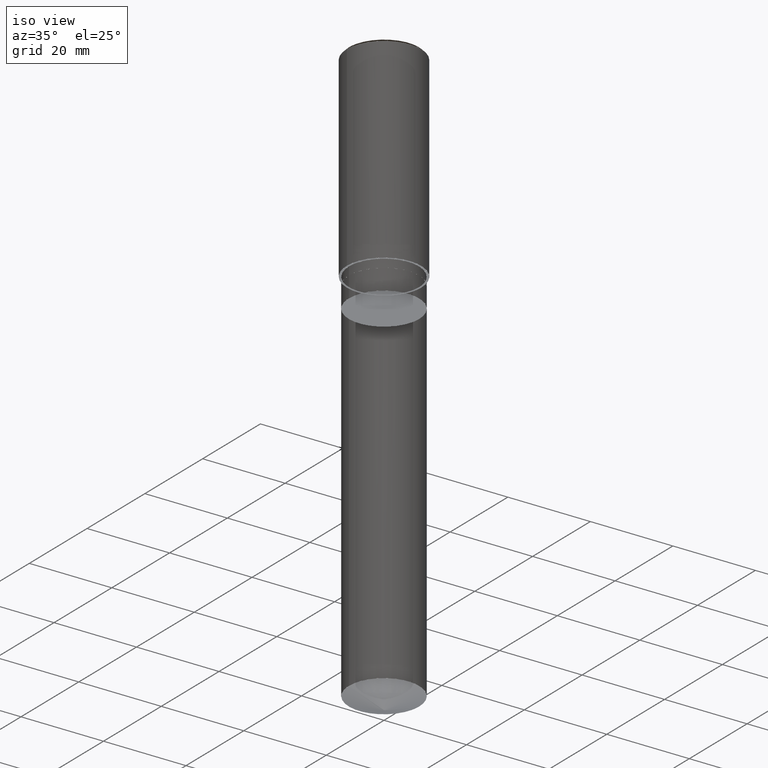
[diagram: clean part render]
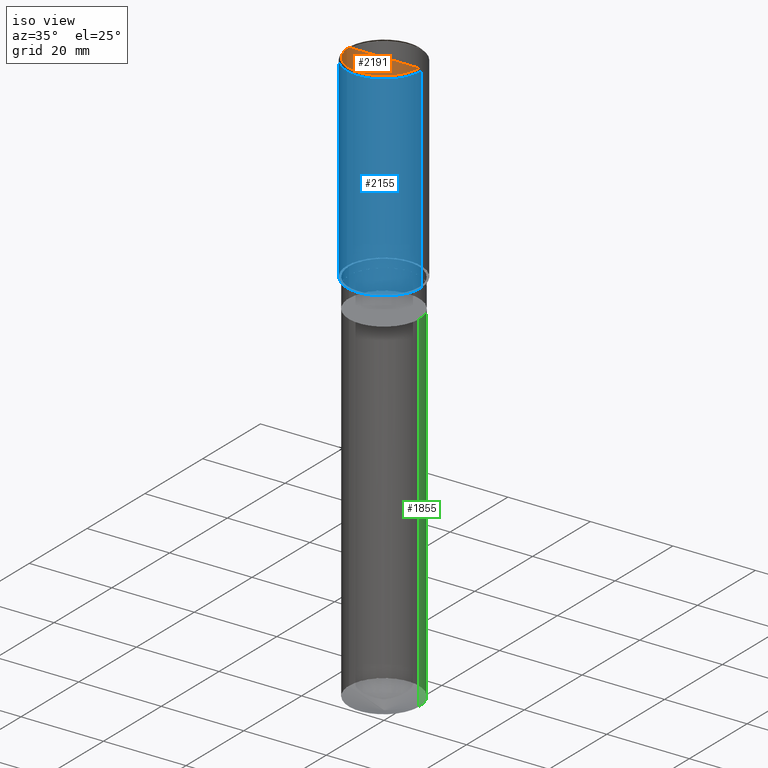
[diagram: same view with three faces highlighted in distinct colors, each labeled with its STEP entity id]
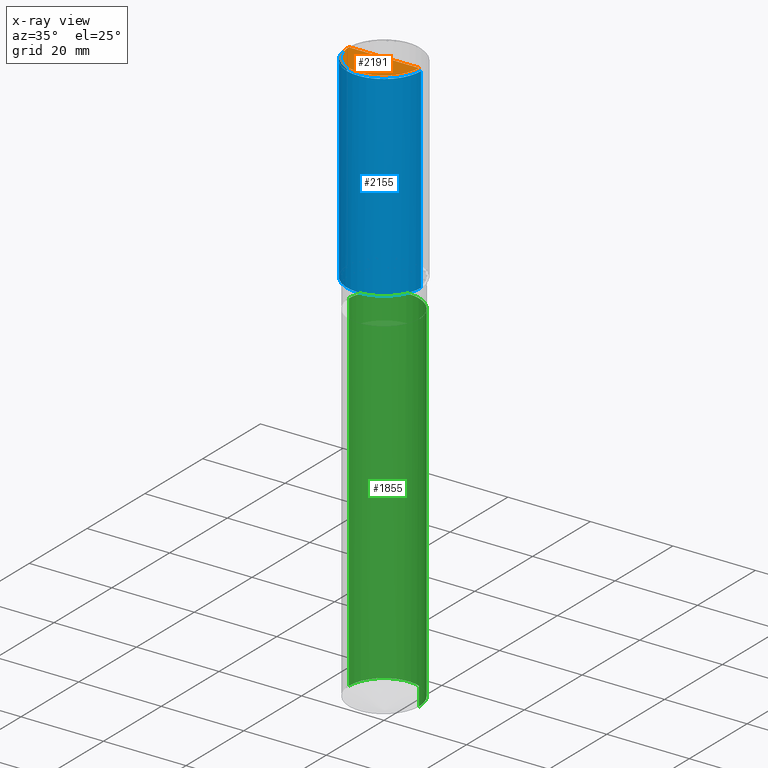
[diagram: x-ray of the same camera — body ghosted, the three highlighted faces saturated]
A machine part, iso view with three faces highlighted in distinct colors.
The next image is the same camera in x-ray (body ghosted, the three faces saturated) — at least one of them is partly hidden behind the body in this view.
Their STEP definitions:

[orange] entity #2191 — the highlighted face is a freeform B-spline surface patch.
#1794=CARTESIAN_POINT('',(8.5,0.0,48.0));
#1798=CARTESIAN_POINT('',(-8.5,0.0,48.0));
#1799=CARTESIAN_POINT('',(0.0,0.0,48.0));
#1812=CARTESIAN_POINT('',(-8.5,-8.5,48.0));
#1813=CARTESIAN_POINT('',(0.0,-8.5,48.0));
#1814=CARTESIAN_POINT('',(8.5,-8.5,48.0));
#2176=(
BOUNDED_SURFACE()
B_SPLINE_SURFACE(1,2,(
(#1798,#1812,#1813,#1814,#1794),
(#1799,#1799,#1799,#1799,#1799)
), .UNSPECIFIED.,.F.,.F.,.F.)
B_SPLINE_SURFACE_WITH_KNOTS((2,2),(3,2,3),(
0.0,1.0),(
0.0,0.5,1.0), .UNSPECIFIED.)
GEOMETRIC_REPRESENTATION_ITEM()
RATIONAL_B_SPLINE_SURFACE(((1.0,0.707106781187,1.0,0.707106781187,1.0),
(1.0,0.707106781187,1.0,0.707106781187,1.0)
))
REPRESENTATION_ITEM('')
SURFACE()
);
#2177=(
BOUNDED_CURVE()
B_SPLINE_CURVE(2,(#1794,#1814,#1813,#1812,#1798),.UNSPECIFIED.,.F.,.F.)
B_SPLINE_CURVE_WITH_KNOTS((3,2,3),
(0.0,0.5,1.0),.UNSPECIFIED.)
CURVE()
GEOMETRIC_REPRESENTATION_ITEM()
RATIONAL_B_SPLINE_CURVE((1.0,0.707106781187,1.0,0.707106781187,1.0))
REPRESENTATION_ITEM('')
);
#2178=(
BOUNDED_CURVE()
B_SPLINE_CURVE(1,(#1798,#1799),.UNSPECIFIED.,.F.,.F.)
B_SPLINE_CURVE_WITH_KNOTS((2,2),
(0.0,1.0),.UNSPECIFIED.)
CURVE()
GEOMETRIC_REPRESENTATION_ITEM()
RATIONAL_B_SPLINE_CURVE((1.0,1.0))
REPRESENTATION_ITEM('')
);
#2179=(
BOUNDED_CURVE()
B_SPLINE_CURVE(1,(#1799,#1794),.UNSPECIFIED.,.F.,.F.)
B_SPLINE_CURVE_WITH_KNOTS((2,2),
(0.0,1.0),.UNSPECIFIED.)
CURVE()
GEOMETRIC_REPRESENTATION_ITEM()
RATIONAL_B_SPLINE_CURVE((1.0,1.0))
REPRESENTATION_ITEM('')
);
#2180=VERTEX_POINT('',#1794);
#2181=VERTEX_POINT('',#1798);
#2182=VERTEX_POINT('',#1799);
#2183=EDGE_CURVE('',#2180,#2181,#2177,.T.);
#2184=EDGE_CURVE('',#2181,#2182,#2178,.T.);
#2185=EDGE_CURVE('',#2182,#2180,#2179,.T.);
#2186=ORIENTED_EDGE('',*,*,#2183,.T.);
#2187=ORIENTED_EDGE('',*,*,#2184,.T.);
#2188=ORIENTED_EDGE('',*,*,#2185,.T.);
#2189=EDGE_LOOP('',(#2186,#2187,#2188));
#2190=FACE_OUTER_BOUND('',#2189,.T.);
#2191=ADVANCED_FACE('',(#2190),#2176,.T.);

[blue] entity #2155 — the highlighted face is a freeform B-spline surface patch.
#1784=CARTESIAN_POINT('',(9.0,0.0,0.0));
#1788=CARTESIAN_POINT('',(-9.0,0.0,0.0));
#1789=CARTESIAN_POINT('',(9.0,0.0,47.5));
#1793=CARTESIAN_POINT('',(-9.0,0.0,47.5));
#1806=CARTESIAN_POINT('',(-9.0,-9.0,0.0));
#1807=CARTESIAN_POINT('',(0.0,-9.0,0.0));
#1808=CARTESIAN_POINT('',(9.0,-9.0,0.0));
#1809=CARTESIAN_POINT('',(-9.0,-9.0,47.5));
#1810=CARTESIAN_POINT('',(0.0,-9.0,47.5));
#1811=CARTESIAN_POINT('',(9.0,-9.0,47.5));
#2136=(
BOUNDED_SURFACE()
B_SPLINE_SURFACE(1,2,(
(#1788,#1806,#1807,#1808,#1784),
(#1793,#1809,#1810,#1811,#1789)
), .UNSPECIFIED.,.F.,.F.,.F.)
B_SPLINE_SURFACE_WITH_KNOTS((2,2),(3,2,3),(
0.0,1.0),(
0.0,0.5,1.0), .UNSPECIFIED.)
GEOMETRIC_REPRESENTATION_ITEM()
RATIONAL_B_SPLINE_SURFACE(((1.0,0.707106781187,1.0,0.707106781187,1.0),
(1.0,0.707106781187,1.0,0.707106781187,1.0)
))
REPRESENTATION_ITEM('')
SURFACE()
);
#2137=(
BOUNDED_CURVE()
B_SPLINE_CURVE(2,(#1784,#1808,#1807,#1806,#1788),.UNSPECIFIED.,.F.,.F.)
B_SPLINE_CURVE_WITH_KNOTS((3,2,3),
(0.0,0.5,1.0),.UNSPECIFIED.)
CURVE()
GEOMETRIC_REPRESENTATION_ITEM()
RATIONAL_B_SPLINE_CURVE((1.0,0.707106781187,1.0,0.707106781187,1.0))
REPRESENTATION_ITEM('')
);
#2138=(
BOUNDED_CURVE()
B_SPLINE_CURVE(1,(#1788,#1793),.UNSPECIFIED.,.F.,.F.)
B_SPLINE_CURVE_WITH_KNOTS((2,2),
(0.0,1.0),.UNSPECIFIED.)
CURVE()
GEOMETRIC_REPRESENTATION_ITEM()
RATIONAL_B_SPLINE_CURVE((1.0,1.0))
REPRESENTATION_ITEM('')
);
#2139=(
BOUNDED_CURVE()
B_SPLINE_CURVE(2,(#1793,#1809,#1810,#1811,#1789),.UNSPECIFIED.,.F.,.F.)
B_SPLINE_CURVE_WITH_KNOTS((3,2,3),
(0.0,0.5,1.0),.UNSPECIFIED.)
CURVE()
GEOMETRIC_REPRESENTATION_ITEM()
RATIONAL_B_SPLINE_CURVE((1.0,0.707106781187,1.0,0.707106781187,1.0))
REPRESENTATION_ITEM('')
);
#2140=(
BOUNDED_CURVE()
B_SPLINE_CURVE(1,(#1789,#1784),.UNSPECIFIED.,.F.,.F.)
B_SPLINE_CURVE_WITH_KNOTS((2,2),
(0.0,1.0),.UNSPECIFIED.)
CURVE()
GEOMETRIC_REPRESENTATION_ITEM()
RATIONAL_B_SPLINE_CURVE((1.0,1.0))
REPRESENTATION_ITEM('')
);
#2141=VERTEX_POINT('',#1784);
#2142=VERTEX_POINT('',#1788);
#2143=VERTEX_POINT('',#1789);
#2144=VERTEX_POINT('',#1793);
#2145=EDGE_CURVE('',#2141,#2142,#2137,.T.);
#2146=EDGE_CURVE('',#2142,#2144,#2138,.T.);
#2147=EDGE_CURVE('',#2144,#2143,#2139,.T.);
#2148=EDGE_CURVE('',#2143,#2141,#2140,.T.);
#2149=ORIENTED_EDGE('',*,*,#2145,.T.);
#2150=ORIENTED_EDGE('',*,*,#2146,.T.);
#2151=ORIENTED_EDGE('',*,*,#2147,.T.);
#2152=ORIENTED_EDGE('',*,*,#2148,.T.);
#2153=EDGE_LOOP('',(#2149,#2150,#2151,#2152));
#2154=FACE_OUTER_BOUND('',#2153,.T.);
#2155=ADVANCED_FACE('',(#2154),#2136,.T.);

[green] entity #1855 — the highlighted face is a freeform B-spline surface patch.
#1757=CARTESIAN_POINT('',(8.5,0.0,-91.906253008737));
#1758=CARTESIAN_POINT('',(8.5,8.5,-91.906253008737));
#1759=CARTESIAN_POINT('',(0.0,8.5,-91.906253008737));
#1760=CARTESIAN_POINT('',(-8.5,8.5,-91.906253008737));
#1761=CARTESIAN_POINT('',(-8.5,0.0,-91.906253008737));
#1762=CARTESIAN_POINT('',(8.5,0.0,-7.0));
#1763=CARTESIAN_POINT('',(8.5,8.5,-7.0));
#1764=CARTESIAN_POINT('',(0.0,8.5,-7.0));
#1765=CARTESIAN_POINT('',(-8.5,8.5,-7.0));
#1766=CARTESIAN_POINT('',(-8.5,0.0,-7.0));
#1836=(
BOUNDED_SURFACE()
B_SPLINE_SURFACE(1,2,(
(#1757,#1758,#1759,#1760,#1761),
(#1762,#1763,#1764,#1765,#1766)
), .UNSPECIFIED.,.F.,.F.,.F.)
B_SPLINE_SURFACE_WITH_KNOTS((2,2),(3,2,3),(
0.0,1.0),(
0.0,0.5,1.0), .UNSPECIFIED.)
GEOMETRIC_REPRESENTATION_ITEM()
RATIONAL_B_SPLINE_SURFACE(((1.0,0.707106781187,1.0,0.707106781187,1.0),
(1.0,0.707106781187,1.0,0.707106781187,1.0)
))
REPRESENTATION_ITEM('')
SURFACE()
);
#1837=(
BOUNDED_CURVE()
B_SPLINE_CURVE(2,(#1761,#1760,#1759,#1758,#1757),.UNSPECIFIED.,.F.,.F.)
B_SPLINE_CURVE_WITH_KNOTS((3,2,3),
(0.0,0.5,1.0),.UNSPECIFIED.)
CURVE()
GEOMETRIC_REPRESENTATION_ITEM()
RATIONAL_B_SPLINE_CURVE((1.0,0.707106781187,1.0,0.707106781187,1.0))
REPRESENTATION_ITEM('')
);
#1838=(
BOUNDED_CURVE()
B_SPLINE_CURVE(1,(#1757,#1762),.UNSPECIFIED.,.F.,.F.)
B_SPLINE_CURVE_WITH_KNOTS((2,2),
(0.0,1.0),.UNSPECIFIED.)
CURVE()
GEOMETRIC_REPRESENTATION_ITEM()
RATIONAL_B_SPLINE_CURVE((1.0,1.0))
REPRESENTATION_ITEM('')
);
#1839=(
BOUNDED_CURVE()
B_SPLINE_CURVE(2,(#1762,#1763,#1764,#1765,#1766),.UNSPECIFIED.,.F.,.F.)
B_SPLINE_CURVE_WITH_KNOTS((3,2,3),
(0.0,0.5,1.0),.UNSPECIFIED.)
CURVE()
GEOMETRIC_REPRESENTATION_ITEM()
RATIONAL_B_SPLINE_CURVE((1.0,0.707106781187,1.0,0.707106781187,1.0))
REPRESENTATION_ITEM('')
);
#1840=(
BOUNDED_CURVE()
B_SPLINE_CURVE(1,(#1766,#1761),.UNSPECIFIED.,.F.,.F.)
B_SPLINE_CURVE_WITH_KNOTS((2,2),
(0.0,1.0),.UNSPECIFIED.)
CURVE()
GEOMETRIC_REPRESENTATION_ITEM()
RATIONAL_B_SPLINE_CURVE((1.0,1.0))
REPRESENTATION_ITEM('')
);
#1841=VERTEX_POINT('',#1757);
#1842=VERTEX_POINT('',#1761);
#1843=VERTEX_POINT('',#1762);
#1844=VERTEX_POINT('',#1766);
#1845=EDGE_CURVE('',#1842,#1841,#1837,.T.);
#1846=EDGE_CURVE('',#1841,#1843,#1838,.T.);
#1847=EDGE_CURVE('',#1843,#1844,#1839,.T.);
#1848=EDGE_CURVE('',#1844,#1842,#1840,.T.);
#1849=ORIENTED_EDGE('',*,*,#1845,.T.);
#1850=ORIENTED_EDGE('',*,*,#1846,.T.);
#1851=ORIENTED_EDGE('',*,*,#1847,.T.);
#1852=ORIENTED_EDGE('',*,*,#1848,.T.);
#1853=EDGE_LOOP('',(#1849,#1850,#1851,#1852));
#1854=FACE_OUTER_BOUND('',#1853,.T.);
#1855=ADVANCED_FACE('',(#1854),#1836,.T.);